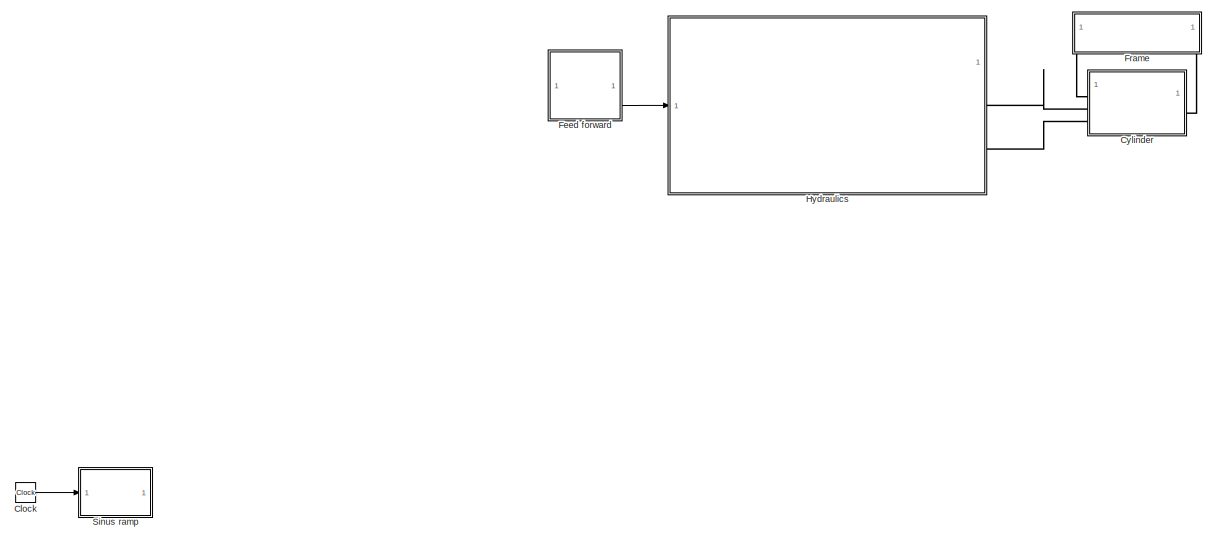
[diagram: root canvas - part 1/2, full width, middle band]
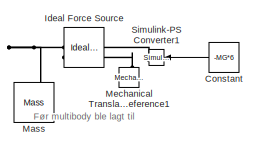
[diagram: root canvas - part 2/2, bottom right region]
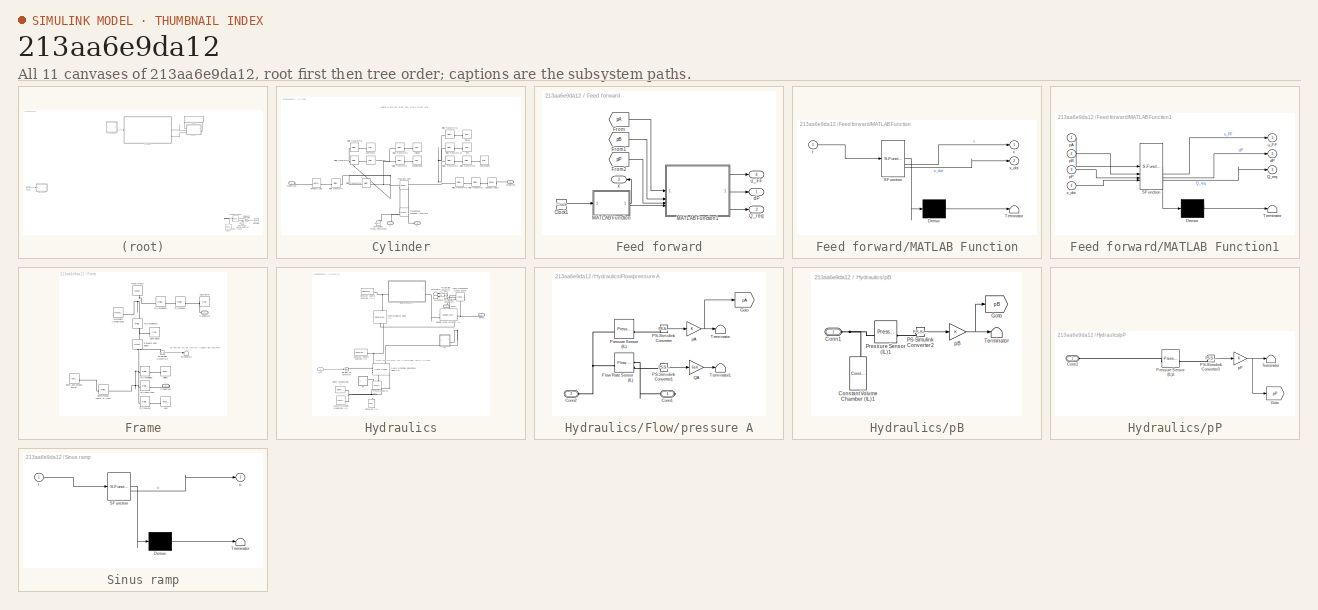
[diagram: thumbnail index - all 11 canvases of the model, root first then tree order]
MODEL slx_213aa6e9da12
KIND model
CONFIG AbsTol = auto
CONFIG EnableMultiTasking = off
CONFIG FixedStep = auto
CONFIG MaxStep = auto
CONFIG MinStep = auto
CONFIG RelTol = 1e-3
CONFIG SampleTimeConstraint = Unconstrained
CONFIG SolverName = VariableStepAuto
CONFIG StartTime = 0.0
CONFIG StopTime = 40
WORKSPACE source: MATLAB code (in-file)
WORKSPACE code: clear;
WORKSPACE rho = 875
WORKSPACE beta = 1000
WORKSPACE pP = 6e6  (= 6000000)
WORKSPACE dp0 = 7e5  (= 700000)
WORKSPACE Q0 = 10/6e4  (= 0.000166666666667)
WORKSPACE Cd = 0.75
WORKSPACE AdMax_SI = Q0/(Cd*(2/rho*dp0)^0.5)  (= 5.55555555556e-06)
WORKSPACE AdMax = AdMax_SI*1e6  (= 5.55555555556)
WORKSPACE d = 80
WORKSPACE dr = 50
WORKSPACE A = pi*d^2/4  (= 5026.54824574)
WORKSPACE Ar = pi*dr^2/4  (= 1963.49540849)
WORKSPACE Aa = A - Ar  (= 3063.05283725)
WORKSPACE L0 = 1600
WORKSPACE m = 75*4 + 20 + 90  (= 410)
WORKSPACE g = 9.81
WORKSPACE MG = m*g  (= 4022.1)
WORKSPACE x_Init = 200
WORKSPACE Cx = 427
WORKSPACE Cz = -1057
WORKSPACE theta_Init = 73.04- 90  (= -16.96)
WORKSPACE thetaDot_Init = 0
WORKSPACE L1 = 3680
WORKSPACE B1 = 100
WORKSPACE H1 = 150
WORKSPACE t1 = 6
WORKSPACE revBasePinDia = 60
WORKSPACE revBasePinLength = 185.5
WORKSPACE rEar = 35
WORKSPACE tEar = 30
WORKSPACE earToCylTop = 52.45
WORKSPACE earToCylBot = 40.62
WORKSPACE cylDia = 75
WORKSPACE cylLength = 682
WORKSPACE rodLength = 565.26
WORKSPACE rodDia = 35
WORKSPACE rodToCyl = 132
WORKSPACE revCylPinDia = 25
WORKSPACE revCylPinLength = 84
WORKSPACE rPiston = 65/2  (= 32.5)
WORKSPACE tPiston = 40
WORKSPACE abx = 564.99
WORKSPACE aby = 133
WORKSPACE L2 = 210
WORKSPACE B2 = 700
WORKSPACE H2 = 300
WORKSPACE dY_PL_Beam = 75
WORKSPACE beam_mass = 410.675
WORKSPACE beam_COM = [3043.56 63.40 0]
WORKSPACE beam_MOI = [0.017432114  0.421942031  0.410722495]
WORKSPACE beam_POI = [0.011754324  -2.50964e-6  -5.072e-8]
BLOCK [Clock] Clock
  Commented = on
BLOCK [Constant] Constant
  Commented = on
  NameLocation = top
  Value = -MG*6
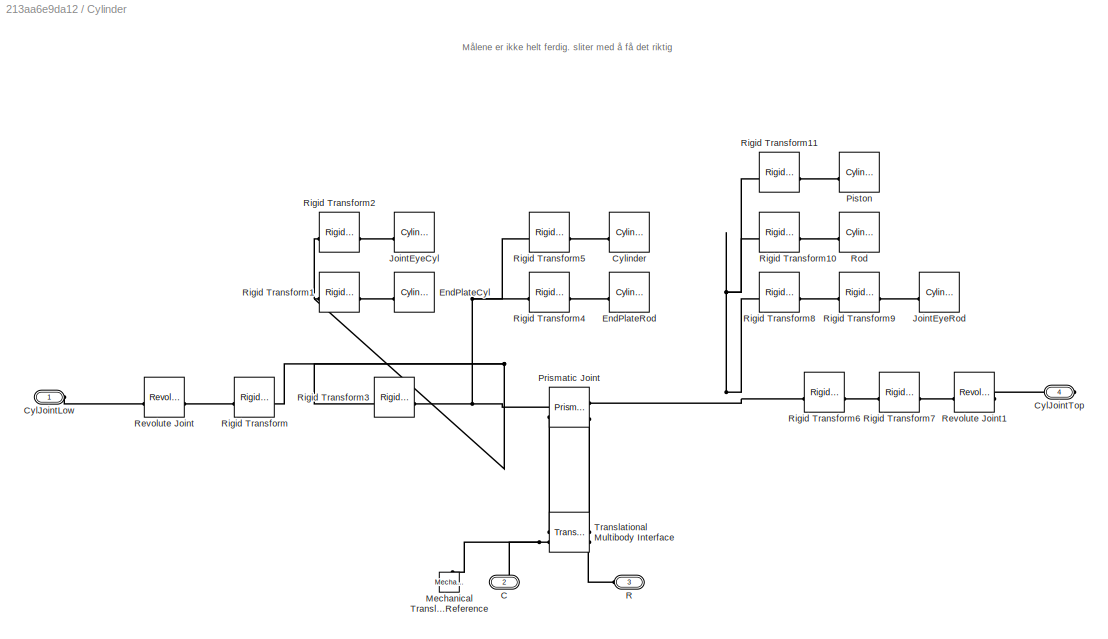
BLOCK [SubSystem] Cylinder
BLOCK [PMIOPort] Cylinder/C
  Port = 2
  Side = Left
BLOCK [PMIOPort] Cylinder/CylJointLow
  Side = Left
BLOCK [PMIOPort] Cylinder/CylJointTop
  Port = 4
  Side = Right
BLOCK [Reference] Cylinder/Cylinder  REF=sm_lib/Body Elements/Cylindrical Solid
  SourceBlock = sm_lib/Body Elements/Cylindrical Solid
  SourceType = Cylindrical Solid
BLOCK [Reference] Cylinder/EndPlateCyl  REF=sm_lib/Body Elements/Cylindrical Solid
  Commented = on
  SourceBlock = sm_lib/Body Elements/Cylindrical Solid
  SourceType = Cylindrical Solid
BLOCK [Reference] Cylinder/EndPlateRod  REF=sm_lib/Body Elements/Cylindrical Solid
  Commented = on
  SourceBlock = sm_lib/Body Elements/Cylindrical Solid
  SourceType = Cylindrical Solid
BLOCK [Reference] Cylinder/JointEyeCyl  REF=sm_lib/Body Elements/Cylindrical Solid
  SourceBlock = sm_lib/Body Elements/Cylindrical Solid
  SourceType = Cylindrical Solid
BLOCK [Reference] Cylinder/JointEyeRod  REF=sm_lib/Body Elements/Cylindrical Solid
  SourceBlock = sm_lib/Body Elements/Cylindrical Solid
  SourceType = Cylindrical Solid
BLOCK [Reference] Cylinder/Mechanical Translational Reference  REF=fl_lib/Mechanical/Translational
Elements/Mechanical
Translational
Reference
  NameLocation = right
  SourceBlock = fl_lib/Mechanical/Translational\nElements/Mechanical\nTranslational\nReference
  SourceType = Mechanical\nTranslational\nReference
BLOCK [Reference] Cylinder/Piston  REF=sm_lib/Body Elements/Cylindrical Solid
  SourceBlock = sm_lib/Body Elements/Cylindrical Solid
  SourceType = Cylindrical Solid
BLOCK [Reference] Cylinder/Prismatic Joint  REF=sm_lib/Joints/Prismatic
Joint
  SourceBlock = sm_lib/Joints/Prismatic\nJoint
  SourceType = Prismatic\nJoint
BLOCK [PMIOPort] Cylinder/R
  Port = 3
  Side = Left
BLOCK [Reference] Cylinder/Revolute Joint  REF=sm_lib/Joints/Revolute Joint
  SourceBlock = sm_lib/Joints/Revolute Joint
  SourceType = Revolute Joint
BLOCK [Reference] Cylinder/Revolute Joint1  REF=sm_lib/Joints/Revolute Joint
  SourceBlock = sm_lib/Joints/Revolute Joint
  SourceType = Revolute Joint
BLOCK [Reference] Cylinder/Rigid Transform  REF=sm_lib/Frames and
Transforms/Rigid
Transform
  SourceBlock = sm_lib/Frames and\nTransforms/Rigid\nTransform
  SourceType = Rigid\nTransform
BLOCK [Reference] Cylinder/Rigid Transform1  REF=sm_lib/Frames and
Transforms/Rigid
Transform
  Commented = on
  SourceBlock = sm_lib/Frames and\nTransforms/Rigid\nTransform
  SourceType = Rigid\nTransform
BLOCK [Reference] Cylinder/Rigid Transform10  REF=sm_lib/Frames and
Transforms/Rigid
Transform
  SourceBlock = sm_lib/Frames and\nTransforms/Rigid\nTransform
  SourceType = Rigid\nTransform
BLOCK [Reference] Cylinder/Rigid Transform11  REF=sm_lib/Frames and
Transforms/Rigid
Transform
  SourceBlock = sm_lib/Frames and\nTransforms/Rigid\nTransform
  SourceType = Rigid\nTransform
BLOCK [Reference] Cylinder/Rigid Transform2  REF=sm_lib/Frames and
Transforms/Rigid
Transform
  SourceBlock = sm_lib/Frames and\nTransforms/Rigid\nTransform
  SourceType = Rigid\nTransform
BLOCK [Reference] Cylinder/Rigid Transform3  REF=sm_lib/Frames and
Transforms/Rigid
Transform
  SourceBlock = sm_lib/Frames and\nTransforms/Rigid\nTransform
  SourceType = Rigid\nTransform
BLOCK [Reference] Cylinder/Rigid Transform4  REF=sm_lib/Frames and
Transforms/Rigid
Transform
  Commented = on
  SourceBlock = sm_lib/Frames and\nTransforms/Rigid\nTransform
  SourceType = Rigid\nTransform
BLOCK [Reference] Cylinder/Rigid Transform5  REF=sm_lib/Frames and
Transforms/Rigid
Transform
  SourceBlock = sm_lib/Frames and\nTransforms/Rigid\nTransform
  SourceType = Rigid\nTransform
BLOCK [Reference] Cylinder/Rigid Transform6  REF=sm_lib/Frames and
Transforms/Rigid
Transform
  SourceBlock = sm_lib/Frames and\nTransforms/Rigid\nTransform
  SourceType = Rigid\nTransform
BLOCK [Reference] Cylinder/Rigid Transform7  REF=sm_lib/Frames and
Transforms/Rigid
Transform
  SourceBlock = sm_lib/Frames and\nTransforms/Rigid\nTransform
  SourceType = Rigid\nTransform
BLOCK [Reference] Cylinder/Rigid Transform8  REF=sm_lib/Frames and
Transforms/Rigid
Transform
  SourceBlock = sm_lib/Frames and\nTransforms/Rigid\nTransform
  SourceType = Rigid\nTransform
BLOCK [Reference] Cylinder/Rigid Transform9  REF=sm_lib/Frames and
Transforms/Rigid
Transform
  SourceBlock = sm_lib/Frames and\nTransforms/Rigid\nTransform
  SourceType = Rigid\nTransform
BLOCK [Reference] Cylinder/Rod  REF=sm_lib/Body Elements/Cylindrical Solid
  SourceBlock = sm_lib/Body Elements/Cylindrical Solid
  SourceType = Cylindrical Solid
BLOCK [Reference] Cylinder/Translational Multibody Interface  REF=fl_lib/Mechanical/Multibody Interfaces/Translational
Multibody Interface
  SourceBlock = fl_lib/Mechanical/Multibody Interfaces/Translational\nMultibody Interface
  SourceType = Translational\nMultibody Interface
BLOCK [SubSystem] Feed forward
BLOCK [Clock] Feed forward/Clock1
BLOCK [From] Feed forward/From
  GotoTag = pA
  TagVisibility = global
BLOCK [From] Feed forward/From1
  GotoTag = pB
  TagVisibility = global
BLOCK [From] Feed forward/From2
  GotoTag = pP
  TagVisibility = global
BLOCK [SubSystem] Feed forward/MATLAB Function
  ErrorFcn = Stateflow.Translate.translate
  PermitHierarchicalResolution = ExplicitOnly
  SFBlockType = MATLAB Function
  TreatAsAtomicUnit = on
BLOCK [Demux] Feed forward/MATLAB Function/ Demux 
  Outputs = 1
BLOCK [S-Function] Feed forward/MATLAB Function/ SFunction 
  EnableBusSupport = off
  FunctionName = sf_sfun
  PortCounts = [1 3]
  SFcnIsStateOwnerBlock = off
  SFunctionDeploymentMode = off
  Tag = Stateflow S-Function 2
BLOCK [Terminator] Feed forward/MATLAB Function/ Terminator 
BLOCK [Inport] Feed forward/MATLAB Function/t
BLOCK [Outport] Feed forward/MATLAB Function/x
BLOCK [Outport] Feed forward/MATLAB Function/x_dot
  Port = 2
BLOCK [SubSystem] Feed forward/MATLAB Function1
  ErrorFcn = Stateflow.Translate.translate
  PermitHierarchicalResolution = ExplicitOnly
  SFBlockType = MATLAB Function
  TreatAsAtomicUnit = on
BLOCK [Demux] Feed forward/MATLAB Function1/ Demux 
  Outputs = 1
BLOCK [S-Function] Feed forward/MATLAB Function1/ SFunction 
  EnableBusSupport = off
  FunctionName = sf_sfun
  Parameters = A,Ar,Q0
  PortCounts = [4 4]
  SFcnIsStateOwnerBlock = off
  SFunctionDeploymentMode = off
  Tag = Stateflow S-Function 3
BLOCK [Terminator] Feed forward/MATLAB Function1/ Terminator 
BLOCK [Outport] Feed forward/MATLAB Function1/Q_req
  Port = 3
BLOCK [Outport] Feed forward/MATLAB Function1/dP
  Port = 2
BLOCK [Inport] Feed forward/MATLAB Function1/pA
BLOCK [Inport] Feed forward/MATLAB Function1/pB
  Port = 2
BLOCK [Inport] Feed forward/MATLAB Function1/pP
  Port = 3
BLOCK [Outport] Feed forward/MATLAB Function1/u_FF
BLOCK [Inport] Feed forward/MATLAB Function1/x_dot
  Port = 4
BLOCK [Outport] Feed forward/Q_req
  Port = 3
BLOCK [Outport] Feed forward/dP
BLOCK [Outport] Feed forward/u_FF
  Port = 4
BLOCK [Outport] Feed forward/x
  Port = 2
BLOCK [SubSystem] Frame
BLOCK [Reference] Frame/Beam and payload inertia  REF=sm_lib/Body Elements/Inertia
  SourceBlock = sm_lib/Body Elements/Inertia
  SourceType = Inertia
BLOCK [Reference] Frame/BeamPayload center of mass  REF=sm_lib/Frames and
Transforms/Rigid
Transform
  SourceBlock = sm_lib/Frames and\nTransforms/Rigid\nTransform
  SourceType = Rigid\nTransform
BLOCK [Reference] Frame/Bjelke  REF=sm_lib/Body Elements/Brick Solid
  SourceBlock = sm_lib/Body Elements/Brick Solid
  SourceType = Brick Solid
BLOCK [PMIOPort] Frame/CylJointLow
  Side = Left
BLOCK [PMIOPort] Frame/CylJointTop
  Port = 2
  Side = Right
BLOCK [Reference] Frame/Last  REF=sm_lib/Body Elements/Brick Solid
  SourceBlock = sm_lib/Body Elements/Brick Solid
  SourceType = Brick Solid
BLOCK [Reference] Frame/Mechanism Configuration  REF=sm_lib/Utilities/Mechanism
Configuration
  SourceBlock = sm_lib/Utilities/Mechanism\nConfiguration
  SourceType = Mechanism\nConfiguration
BLOCK [Reference] Frame/PS-Simulink Converter2  REF=nesl_utility/PS-Simulink
Converter
  SourceBlock = nesl_utility/PS-Simulink\nConverter
  SourceType = PS-Simulink\nConverter
BLOCK [Reference] Frame/Revolute Joint global  REF=sm_lib/Joints/Revolute Joint
  NameLocation = left
  SourceBlock = sm_lib/Joints/Revolute Joint
  SourceType = Revolute Joint
BLOCK [Reference] Frame/TF_rotBaseL  REF=sm_lib/Frames and
Transforms/Rigid
Transform
  SourceBlock = sm_lib/Frames and\nTransforms/Rigid\nTransform
  SourceType = Rigid\nTransform
BLOCK [Reference] Frame/TF_transBaseG  REF=sm_lib/Frames and
Transforms/Rigid
Transform
  NameLocation = left
  SourceBlock = sm_lib/Frames and\nTransforms/Rigid\nTransform
  SourceType = Rigid\nTransform
BLOCK [Reference] Frame/TF_transBaseL  REF=sm_lib/Frames and
Transforms/Rigid
Transform
  SourceBlock = sm_lib/Frames and\nTransforms/Rigid\nTransform
  SourceType = Rigid\nTransform
BLOCK [Reference] Frame/TF_transBjelke  REF=sm_lib/Frames and
Transforms/Rigid
Transform
  SourceBlock = sm_lib/Frames and\nTransforms/Rigid\nTransform
  SourceType = Rigid\nTransform
BLOCK [Reference] Frame/TF_transCylTop  REF=sm_lib/Frames and
Transforms/Rigid
Transform
  SourceBlock = sm_lib/Frames and\nTransforms/Rigid\nTransform
  SourceType = Rigid\nTransform
BLOCK [Reference] Frame/TF_transLast  REF=sm_lib/Frames and
Transforms/Rigid
Transform
  SourceBlock = sm_lib/Frames and\nTransforms/Rigid\nTransform
  SourceType = Rigid\nTransform
BLOCK [Terminator] Frame/Terminator2
BLOCK [Reference] Frame/World Frame  REF=sm_lib/Frames and
Transforms/World Frame
  NameLocation = left
  SourceBlock = sm_lib/Frames and\nTransforms/World Frame
  SourceType = World Frame
BLOCK [Reference] Frame/base global  REF=sm_lib/Body Elements/Cylindrical Solid
  SourceBlock = sm_lib/Body Elements/Cylindrical Solid
  SourceType = Cylindrical Solid
BLOCK [Reference] Frame/base lower  REF=sm_lib/Body Elements/Cylindrical Solid
  SourceBlock = sm_lib/Body Elements/Cylindrical Solid
  SourceType = Cylindrical Solid
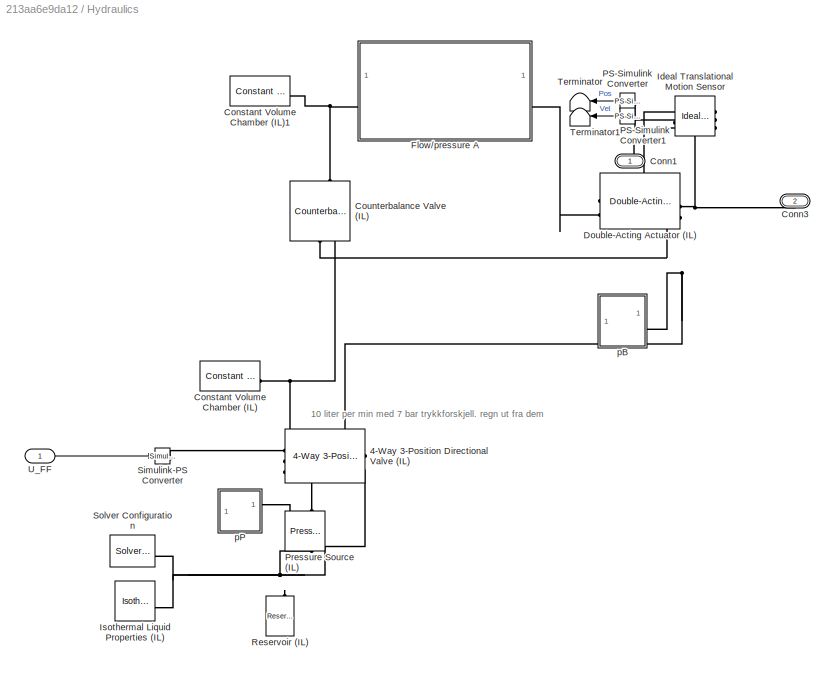
BLOCK [SubSystem] Hydraulics
BLOCK [Reference] Hydraulics/4-Way 3-Position Directional Valve (IL)  REF=SimscapeFluids_lib/Isothermal Liquid/Valves & Orifices/Directional Control
Valves/4-Way 3-Position
Directional Valve
(IL)
  SourceBlock = SimscapeFluids_lib/Isothermal Liquid/Valves & Orifices/Directional Control\nValves/4-Way 3-Position\nDirectional Valve\n(IL)
  SourceType = 4-Way 3-Position\nDirectional Valve\n(IL)
BLOCK [PMIOPort] Hydraulics/Conn1
  Side = Right
BLOCK [PMIOPort] Hydraulics/Conn3
  Port = 2
  Side = Right
BLOCK [Reference] Hydraulics/Constant Volume Chamber (IL)  REF=fl_lib/Isothermal Liquid/Elements/Constant Volume
Chamber (IL)
  SourceBlock = fl_lib/Isothermal Liquid/Elements/Constant Volume\nChamber (IL)
  SourceType = Constant Volume\nChamber (IL)
BLOCK [Reference] Hydraulics/Constant Volume Chamber (IL)1  REF=fl_lib/Isothermal Liquid/Elements/Constant Volume
Chamber (IL)
  SourceBlock = fl_lib/Isothermal Liquid/Elements/Constant Volume\nChamber (IL)
  SourceType = Constant Volume\nChamber (IL)
BLOCK [Reference] Hydraulics/Counterbalance Valve (IL)  REF=SimscapeFluids_lib/Isothermal Liquid/Valves & Orifices/Pressure Control
Valves/Counterbalance Valve
(IL)
  NameLocation = left
  SourceBlock = SimscapeFluids_lib/Isothermal Liquid/Valves & Orifices/Pressure Control\nValves/Counterbalance Valve\n(IL)
  SourceType = Counterbalance Valve\n(IL)
BLOCK [Reference] Hydraulics/Double-Acting Actuator (IL)  REF=SimscapeFluids_lib/Isothermal Liquid/Actuators/Double-Acting
Actuator (IL)
  SourceBlock = SimscapeFluids_lib/Isothermal Liquid/Actuators/Double-Acting\nActuator (IL)
  SourceType = Double-Acting\nActuator (IL)
BLOCK [SubSystem] Hydraulics/Flow//pressure A
BLOCK [PMIOPort] Hydraulics/Flow//pressure A/Conn1
  Side = Right
BLOCK [PMIOPort] Hydraulics/Flow//pressure A/Conn2
  Port = 2
  Side = Left
BLOCK [Reference] Hydraulics/Flow//pressure A/Flow Rate Sensor (IL)  REF=fl_lib/Isothermal Liquid/Sensors/Flow Rate Sensor
(IL)
  SourceBlock = fl_lib/Isothermal Liquid/Sensors/Flow Rate Sensor\n(IL)
  SourceType = Flow Rate Sensor\n(IL)
BLOCK [Goto] Hydraulics/Flow//pressure A/Goto
  GotoTag = pA
  TagVisibility = global
BLOCK [Reference] Hydraulics/Flow//pressure A/PS-Simulink Converter  REF=nesl_utility/PS-Simulink
Converter
  SourceBlock = nesl_utility/PS-Simulink\nConverter
  SourceType = PS-Simulink\nConverter
BLOCK [Reference] Hydraulics/Flow//pressure A/PS-Simulink Converter1  REF=nesl_utility/PS-Simulink
Converter
  SourceBlock = nesl_utility/PS-Simulink\nConverter
  SourceType = PS-Simulink\nConverter
BLOCK [Reference] Hydraulics/Flow//pressure A/Pressure Sensor (IL)  REF=fl_lib/Isothermal Liquid/Sensors/Pressure Sensor (IL)
  SourceBlock = fl_lib/Isothermal Liquid/Sensors/Pressure Sensor (IL)
  SourceType = Pressure Sensor (IL)
BLOCK [Gain] Hydraulics/Flow//pressure A/QA
  Gain = 6e4
BLOCK [Terminator] Hydraulics/Flow//pressure A/Terminator
BLOCK [Terminator] Hydraulics/Flow//pressure A/Terminator1
BLOCK [Gain] Hydraulics/Flow//pressure A/pA
BLOCK [Reference] Hydraulics/Ideal Translational Motion Sensor  REF=fl_lib/Mechanical/Mechanical Sensors/Ideal Translational
Motion Sensor
  NameLocation = top
  SourceBlock = fl_lib/Mechanical/Mechanical Sensors/Ideal Translational\nMotion Sensor
  SourceType = Ideal Translational\nMotion Sensor
BLOCK [Reference] Hydraulics/Isothermal Liquid Properties (IL)  REF=fl_lib/Isothermal Liquid/Utilities/Isothermal Liquid
Properties (IL)
  SourceBlock = fl_lib/Isothermal Liquid/Utilities/Isothermal Liquid\nProperties (IL)
  SourceType = Isothermal Liquid\nProperties (IL)
BLOCK [Reference] Hydraulics/PS-Simulink Converter  REF=nesl_utility/PS-Simulink
Converter
  NameLocation = top
  SourceBlock = nesl_utility/PS-Simulink\nConverter
  SourceType = PS-Simulink\nConverter
BLOCK [Reference] Hydraulics/PS-Simulink Converter1  REF=nesl_utility/PS-Simulink
Converter
  NameLocation = top
  SourceBlock = nesl_utility/PS-Simulink\nConverter
  SourceType = PS-Simulink\nConverter
BLOCK [Reference] Hydraulics/Pressure Source (IL)  REF=fl_lib/Isothermal Liquid/Sources/Pressure Source (IL)
  NameLocation = right
  SourceBlock = fl_lib/Isothermal Liquid/Sources/Pressure Source (IL)
  SourceType = Pressure Source (IL)
BLOCK [Reference] Hydraulics/Reservoir (IL)  REF=fl_lib/Isothermal Liquid/Elements/Reservoir (IL)
  NameLocation = right
  SourceBlock = fl_lib/Isothermal Liquid/Elements/Reservoir (IL)
  SourceType = Reservoir (IL)
BLOCK [Reference] Hydraulics/Simulink-PS Converter  REF=nesl_utility/Simulink-PS
Converter
  SourceBlock = nesl_utility/Simulink-PS\nConverter
  SourceType = Simulink-PS\nConverter
BLOCK [Reference] Hydraulics/Solver Configuration  REF=nesl_utility/Solver
Configuration
  SourceBlock = nesl_utility/Solver\nConfiguration
  SourceType = Solver\nConfiguration
BLOCK [Terminator] Hydraulics/Terminator
  NameLocation = top
BLOCK [Terminator] Hydraulics/Terminator1
  NameLocation = top
BLOCK [Inport] Hydraulics/U_FF
BLOCK [SubSystem] Hydraulics/pB
BLOCK [PMIOPort] Hydraulics/pB/Conn1
  Side = Left
BLOCK [Reference] Hydraulics/pB/Constant Volume Chamber (IL)1  REF=fl_lib/Isothermal Liquid/Elements/Constant Volume
Chamber (IL)
  NameLocation = right
  SourceBlock = fl_lib/Isothermal Liquid/Elements/Constant Volume\nChamber (IL)
  SourceType = Constant Volume\nChamber (IL)
BLOCK [Goto] Hydraulics/pB/Goto
  GotoTag = pB
  TagVisibility = global
BLOCK [Reference] Hydraulics/pB/PS-Simulink Converter2  REF=nesl_utility/PS-Simulink
Converter
  SourceBlock = nesl_utility/PS-Simulink\nConverter
  SourceType = PS-Simulink\nConverter
BLOCK [Reference] Hydraulics/pB/Pressure Sensor (IL)1  REF=fl_lib/Isothermal Liquid/Sensors/Pressure Sensor (IL)
  SourceBlock = fl_lib/Isothermal Liquid/Sensors/Pressure Sensor (IL)
  SourceType = Pressure Sensor (IL)
BLOCK [Terminator] Hydraulics/pB/Terminator
BLOCK [Gain] Hydraulics/pB/pB
BLOCK [SubSystem] Hydraulics/pP
BLOCK [PMIOPort] Hydraulics/pP/Conn1
  Side = Left
BLOCK [Goto] Hydraulics/pP/Goto
  GotoTag = pP
  TagVisibility = global
BLOCK [Reference] Hydraulics/pP/PS-Simulink Converter3  REF=nesl_utility/PS-Simulink
Converter
  SourceBlock = nesl_utility/PS-Simulink\nConverter
  SourceType = PS-Simulink\nConverter
BLOCK [Reference] Hydraulics/pP/Pressure Sensor (IL)2  REF=fl_lib/Isothermal Liquid/Sensors/Pressure Sensor (IL)
  SourceBlock = fl_lib/Isothermal Liquid/Sensors/Pressure Sensor (IL)
  SourceType = Pressure Sensor (IL)
BLOCK [Terminator] Hydraulics/pP/Terminator
BLOCK [Gain] Hydraulics/pP/pP
BLOCK [Reference] Ideal Force Source  REF=fl_lib/Mechanical/Mechanical Sources/Ideal Force Source
  Commented = on
  NameLocation = top
  SourceBlock = fl_lib/Mechanical/Mechanical Sources/Ideal Force Source
  SourceType = Ideal Force Source
BLOCK [Reference] Mass  REF=fl_lib/Mechanical/Translational
Elements/Mass
  Commented = on
  NameLocation = right
  SourceBlock = fl_lib/Mechanical/Translational\nElements/Mass
  SourceType = Mass
BLOCK [Reference] Mechanical Translational Reference1  REF=fl_lib/Mechanical/Translational
Elements/Mechanical
Translational
Reference
  Commented = on
  NameLocation = right
  SourceBlock = fl_lib/Mechanical/Translational\nElements/Mechanical\nTranslational\nReference
  SourceType = Mechanical\nTranslational\nReference
BLOCK [Reference] Simulink-PS Converter1  REF=nesl_utility/Simulink-PS
Converter
  Commented = on
  NameLocation = top
  SourceBlock = nesl_utility/Simulink-PS\nConverter
  SourceType = Simulink-PS\nConverter
BLOCK [SubSystem] Sinus ramp
  Commented = on
  ErrorFcn = Stateflow.Translate.translate
  PermitHierarchicalResolution = ExplicitOnly
  SFBlockType = MATLAB Function
  TreatAsAtomicUnit = on
BLOCK [Demux] Sinus ramp/ Demux 
  Outputs = 1
BLOCK [S-Function] Sinus ramp/ SFunction 
  EnableBusSupport = off
  FunctionName = sf_sfun
  PortCounts = [1 2]
  SFcnIsStateOwnerBlock = off
  SFunctionDeploymentMode = off
  Tag = Stateflow S-Function 1
BLOCK [Terminator] Sinus ramp/ Terminator 
BLOCK [Inport] Sinus ramp/t
BLOCK [Outport] Sinus ramp/u
ANNOTATION (root): Før multibody ble lagt til
ANNOTATION Cylinder: Målene er ikke helt ferdig. sliter med å få det riktig
ANNOTATION Frame: Vet ikke helt om det kommer i radianer eller deg enda
ANNOTATION Hydraulics: 10 liter per min med 7 bar trykkforskjell. regn ut fra dem
LINE Clock:1 -> Sinus ramp:1
LINE Constant:1 -> Simulink-PS Converter1:1
LINE Feed forward/Clock1:1 -> Feed forward/MATLAB Function:1
LINE Feed forward/From1:1 -> Feed forward/MATLAB Function1:2
LINE Feed forward/From2:1 -> Feed forward/MATLAB Function1:3
LINE Feed forward/From:1 -> Feed forward/MATLAB Function1:1
LINE Feed forward/MATLAB Function1:1 -> Feed forward/u_FF:1
LINE Feed forward/MATLAB Function1:2 -> Feed forward/dP:1
LINE Feed forward/MATLAB Function1:3 -> Feed forward/Q_req:1
LINE Feed forward/MATLAB Function:1 -> Feed forward/x:1
LINE Feed forward/MATLAB Function:2 -> Feed forward/MATLAB Function1:4
LINE Feed forward:4 -> Hydraulics:1
LINE Frame/PS-Simulink Converter2:1 -> Frame/Terminator2:1
LINE Hydraulics/Flow//pressure A/PS-Simulink Converter1:1 -> Hydraulics/Flow//pressure A/QA:1
LINE Hydraulics/Flow//pressure A/PS-Simulink Converter:1 -> Hydraulics/Flow//pressure A/pA:1
LINE Hydraulics/Flow//pressure A/QA:1 -> Hydraulics/Flow//pressure A/Terminator1:1
NET Hydraulics/Flow//pressure A/pA:1 -> Hydraulics/Flow//pressure A/Goto:1, Hydraulics/Flow//pressure A/Terminator:1
LINE Hydraulics/PS-Simulink Converter1:1 -> Hydraulics/Terminator1:1
LINE Hydraulics/PS-Simulink Converter:1 -> Hydraulics/Terminator:1
LINE Hydraulics/U_FF:1 -> Hydraulics/Simulink-PS Converter:1
LINE Hydraulics/pB/PS-Simulink Converter2:1 -> Hydraulics/pB/pB:1
NET Hydraulics/pB/pB:1 -> Hydraulics/pB/Goto:1, Hydraulics/pB/Terminator:1
LINE Hydraulics/pP/PS-Simulink Converter3:1 -> Hydraulics/pP/pP:1
NET Hydraulics/pP/pP:1 -> Hydraulics/pP/Goto:1, Hydraulics/pP/Terminator:1
PNET net1: Cylinder/C:RConn1 -- Cylinder/Mechanical Translational Reference:LConn1 -- Cylinder/Translational Multibody Interface:LConn2
PLINE Cylinder/CylJointLow:RConn1 -- Cylinder/Revolute Joint:LConn1
PLINE Cylinder/CylJointTop:RConn1 -- Cylinder/Revolute Joint1:RConn1
PLINE Cylinder/Cylinder:RConn1 -- Cylinder/Rigid Transform5:RConn1
PLINE Cylinder/EndPlateCyl:RConn1 -- Cylinder/Rigid Transform1:RConn1
PLINE Cylinder/EndPlateRod:RConn1 -- Cylinder/Rigid Transform4:RConn1
PLINE Cylinder/JointEyeCyl:RConn1 -- Cylinder/Rigid Transform2:RConn1
PLINE Cylinder/JointEyeRod:RConn1 -- Cylinder/Rigid Transform9:RConn1
PLINE Cylinder/Piston:RConn1 -- Cylinder/Rigid Transform11:RConn1
PNET net2: Cylinder/Prismatic Joint:LConn1 -- Cylinder/Rigid Transform3:RConn1 -- Cylinder/Rigid Transform4:LConn1 -- Cylinder/Rigid Transform5:LConn1
PLINE Cylinder/Prismatic Joint:LConn2 -- Cylinder/Translational Multibody Interface:LConn1
PNET net3: Cylinder/Prismatic Joint:RConn1 -- Cylinder/Rigid Transform10:LConn1 -- Cylinder/Rigid Transform11:LConn1 -- Cylinder/Rigid Transform6:LConn1 -- Cylinder/Rigid Transform8:LConn1
PLINE Cylinder/Prismatic Joint:RConn3 -- Cylinder/Translational Multibody Interface:RConn1
PLINE Cylinder/R:RConn1 -- Cylinder/Translational Multibody Interface:RConn2
PLINE Cylinder/Revolute Joint1:LConn1 -- Cylinder/Rigid Transform7:RConn1
PLINE Cylinder/Revolute Joint:RConn1 -- Cylinder/Rigid Transform:LConn1
PLINE Cylinder/Rigid Transform10:RConn1 -- Cylinder/Rod:RConn1
PNET net4: Cylinder/Rigid Transform1:LConn1 -- Cylinder/Rigid Transform2:LConn1 -- Cylinder/Rigid Transform3:LConn1 -- Cylinder/Rigid Transform:RConn1
PLINE Cylinder/Rigid Transform6:RConn1 -- Cylinder/Rigid Transform7:LConn1
PLINE Cylinder/Rigid Transform8:RConn1 -- Cylinder/Rigid Transform9:LConn1
PLINE Cylinder:LConn1 -- Frame:LConn1
PLINE Cylinder:LConn2 -- Hydraulics:RConn1
PLINE Cylinder:LConn3 -- Hydraulics:RConn2
PLINE Cylinder:RConn1 -- Frame:RConn1
PLINE Frame/Beam and payload inertia:RConn1 -- Frame/BeamPayload center of mass:LConn1
PNET net5: Frame/BeamPayload center of mass:RConn1 -- Frame/Revolute Joint global:RConn1 -- Frame/TF_transBjelke:LConn1 -- Frame/TF_transCylTop:LConn1 -- Frame/TF_transLast:LConn1
PLINE Frame/Bjelke:RConn1 -- Frame/TF_transBjelke:RConn1
PNET net6: Frame/CylJointLow:RConn1 -- Frame/TF_rotBaseL:RConn1 -- Frame/base lower:RConn1
PLINE Frame/CylJointTop:RConn1 -- Frame/TF_transCylTop:RConn1
PLINE Frame/Last:RConn1 -- Frame/TF_transLast:RConn1
PNET net7: Frame/Mechanism Configuration:RConn1 -- Frame/TF_transBaseG:LConn1 -- Frame/TF_transBaseL:LConn1 -- Frame/World Frame:RConn1
PLINE Frame/PS-Simulink Converter2:LConn1 -- Frame/Revolute Joint global:RConn2
PNET net8: Frame/Revolute Joint global:LConn1 -- Frame/TF_transBaseG:RConn1 -- Frame/base global:RConn1
PLINE Frame/TF_rotBaseL:LConn1 -- Frame/TF_transBaseL:RConn1
PLINE Hydraulics/4-Way 3-Position Directional Valve (IL):LConn1 -- Hydraulics/Simulink-PS Converter:RConn1
PNET net9: Hydraulics/4-Way 3-Position Directional Valve (IL):LConn2 -- Hydraulics/Constant Volume Chamber (IL):LConn1 -- Hydraulics/Counterbalance Valve (IL):RConn2
PNET net10: Hydraulics/4-Way 3-Position Directional Valve (IL):LConn3 -- Hydraulics/Counterbalance Valve (IL):RConn1 -- Hydraulics/Double-Acting Actuator (IL):RConn3 -- Hydraulics/pB:LConn1
PNET net11: Hydraulics/4-Way 3-Position Directional Valve (IL):RConn1 -- Hydraulics/Pressure Source (IL):RConn1 -- Hydraulics/pP:LConn1
PNET net12: Hydraulics/4-Way 3-Position Directional Valve (IL):RConn2 -- Hydraulics/Isothermal Liquid Properties (IL):RConn1 -- Hydraulics/Pressure Source (IL):LConn1 -- Hydraulics/Reservoir (IL):LConn1 -- Hydraulics/Solver Configuration:RConn1
PNET net13: Hydraulics/Conn1:RConn1 -- Hydraulics/Double-Acting Actuator (IL):LConn1 -- Hydraulics/Ideal Translational Motion Sensor:RConn1
PNET net14: Hydraulics/Conn3:RConn1 -- Hydraulics/Double-Acting Actuator (IL):RConn2 -- Hydraulics/Ideal Translational Motion Sensor:LConn1
PNET net15: Hydraulics/Constant Volume Chamber (IL)1:LConn1 -- Hydraulics/Counterbalance Valve (IL):LConn1 -- Hydraulics/Flow//pressure A:LConn1
PLINE Hydraulics/Double-Acting Actuator (IL):LConn2 -- Hydraulics/Flow//pressure A:RConn1
PLINE Hydraulics/Flow//pressure A/Conn1:RConn1 -- Hydraulics/Flow//pressure A/Flow Rate Sensor (IL):RConn1
PNET net16: Hydraulics/Flow//pressure A/Conn2:RConn1 -- Hydraulics/Flow//pressure A/Flow Rate Sensor (IL):LConn1 -- Hydraulics/Flow//pressure A/Pressure Sensor (IL):LConn1
PLINE Hydraulics/Flow//pressure A/Flow Rate Sensor (IL):RConn2 -- Hydraulics/Flow//pressure A/PS-Simulink Converter1:LConn1
PLINE Hydraulics/Flow//pressure A/PS-Simulink Converter:LConn1 -- Hydraulics/Flow//pressure A/Pressure Sensor (IL):RConn1
PLINE Hydraulics/Ideal Translational Motion Sensor:RConn2 -- Hydraulics/PS-Simulink Converter1:LConn1
PLINE Hydraulics/Ideal Translational Motion Sensor:RConn3 -- Hydraulics/PS-Simulink Converter:LConn1
PNET net17: Hydraulics/pB/Conn1:RConn1 -- Hydraulics/pB/Constant Volume Chamber (IL)1:LConn1 -- Hydraulics/pB/Pressure Sensor (IL)1:LConn1
PLINE Hydraulics/pB/PS-Simulink Converter2:LConn1 -- Hydraulics/pB/Pressure Sensor (IL)1:RConn1
PLINE Hydraulics/pP/Conn1:RConn1 -- Hydraulics/pP/Pressure Sensor (IL)2:LConn1
PLINE Hydraulics/pP/PS-Simulink Converter3:LConn1 -- Hydraulics/pP/Pressure Sensor (IL)2:RConn1
PLINE Ideal Force Source:LConn1 -- Mass:LConn1
PLINE Ideal Force Source:RConn1 -- Simulink-PS Converter1:RConn1
PLINE Ideal Force Source:RConn2 -- Mechanical Translational Reference1:LConn1
note: NET lines group one-source signal fan-out (src -> all destinations, sorted); 1:1 wires keep LINE; PNET lines group multi-terminal physical nets as a canonical sorted terminal list (undirected conserving connections); 2-terminal nets keep the pairwise PLINE form
CHART Sinus ramp states=1 transitions=1
  STATE_LABEL 'eML_blk_kernel()'
  STATE_LABEL 'SCRIPT:\nfunction u = valve_control(t)\n\nt_ramp = 1;\nt_hold = 4;\nu_max  = 0.8;\n\nif t < t_ramp\n    % Smooth ramp up\n    tau = t / t_ramp;\n    u = u_max * 0.5 * (1 - cos(pi*tau));\n\nelseif t < t_ramp + t_hold\n    u = u_max;\n\nelseif t < 2*t_ramp + t_hold\n    % Smooth ramp to zero\n    tau = (t - t_ramp - t_hold) / t_ramp;\n    u = u_max * 0.5 * (1 + cos(pi*tau));\n\nelseif t < 2*t_ramp + 2*t_hold\n    u = 0;...<+213ch>'
CHART Feed forward/MATLAB Function states=1 transitions=1
  STATE_LABEL 'eML_blk_kernel()'
  STATE_LABEL 'SCRIPT:\nfunction [x,x_dot] = fcn(t) \na_max = 0.1; %Amplitude\nf = 0.05; %frequency\nx0 = 0.1; %offset\n\nx = x0 - a_max*cos(2*pi*f*t); \nx_dot = a_max*2*pi*f*sin(2*pi*f*t);'
CHART Feed forward/MATLAB Function1 states=1 transitions=1
  STATE_LABEL 'eML_blk_kernel()'
  STATE_LABEL 'SCRIPT:\nfunction [u_FF, dP, Q_req] = valveFeedForward(pA, pB, pP, x_dot, A, Ar, Q0)\n\n% ---- Reference valve data ----\ndp_ref = 7e5;      % reference pressure drop [Pa] er dette dp0?\nQ0_ext = Q0;       % nominal valve flow at dp_ref (extend) [m^3/s]\nQ0_ret = Q0;       % nominal valve flow at dp_ref (retract) [m^3/s]\n\ndP_min = 1e5;            % numerical protection\n\n% Convert cylinder areas from mm^...<+567ch>'
CHART  states=0 transitions=0
CHART  states=0 transitions=0
CHART  states=0 transitions=0
